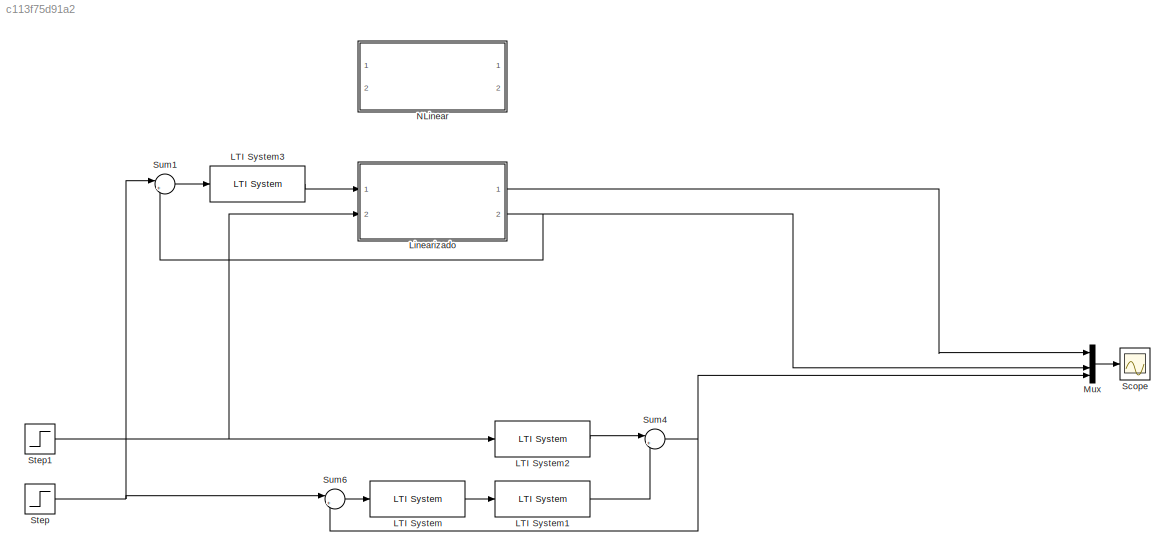
MODEL slx_c113f75d91a2
KIND model
CONFIG AbsTol = auto
CONFIG EnableMultiTasking = off
CONFIG FixedStep = auto
CONFIG MaxStep = auto
CONFIG MinStep = auto
CONFIG RelTol = 1e-3
CONFIG SampleTimeConstraint = Unconstrained
CONFIG Solver = VariableStepAuto
CONFIG SolverName = VariableStepAuto
CONFIG StartTime = 0.0
CONFIG StopTime = 500
BLOCK [Reference] LTI System  REF=cstblocks/LTI System
  Ports = [1, 1]
  SourceBlock = cstblocks/LTI System
  SourceProductBaseCode = CT
  SourceProductName = Control System Toolbox
  SourceType = LTI Block
BLOCK [Reference] LTI System1  REF=cstblocks/LTI System
  Ports = [1, 1]
  SourceBlock = cstblocks/LTI System
  SourceProductBaseCode = CT
  SourceProductName = Control System Toolbox
  SourceType = LTI Block
BLOCK [Reference] LTI System2  REF=cstblocks/LTI System
  Ports = [1, 1]
  SourceBlock = cstblocks/LTI System
  SourceProductBaseCode = CT
  SourceProductName = Control System Toolbox
  SourceType = LTI Block
BLOCK [Reference] LTI System3  REF=cstblocks/LTI System
  Ports = [1, 1]
  SourceBlock = cstblocks/LTI System
  SourceProductBaseCode = CT
  SourceProductName = Control System Toolbox
  SourceType = LTI Block
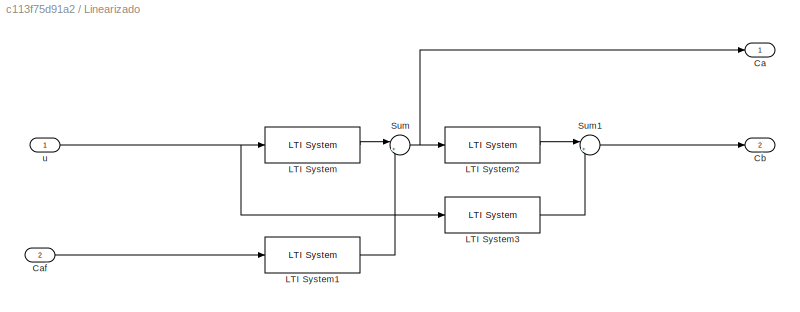
BLOCK [SubSystem] Linearizado
  Ports = [2, 2]
  RequestExecContextInheritance = off
  Variant = off
BLOCK [Outport] Linearizado/Ca
  IconDisplay = Port number
BLOCK [Inport] Linearizado/Caf
  IconDisplay = Port number
  Port = 2
BLOCK [Outport] Linearizado/Cb
  IconDisplay = Port number
  Port = 2
BLOCK [Reference] Linearizado/LTI System  REF=cstblocks/LTI System
  Ports = [1, 1]
  SourceBlock = cstblocks/LTI System
  SourceProductBaseCode = CT
  SourceProductName = Control System Toolbox
  SourceType = LTI Block
BLOCK [Reference] Linearizado/LTI System1  REF=cstblocks/LTI System
  Ports = [1, 1]
  SourceBlock = cstblocks/LTI System
  SourceProductBaseCode = CT
  SourceProductName = Control System Toolbox
  SourceType = LTI Block
BLOCK [Reference] Linearizado/LTI System2  REF=cstblocks/LTI System
  Ports = [1, 1]
  SourceBlock = cstblocks/LTI System
  SourceProductBaseCode = CT
  SourceProductName = Control System Toolbox
  SourceType = LTI Block
BLOCK [Reference] Linearizado/LTI System3  REF=cstblocks/LTI System
  Ports = [1, 1]
  SourceBlock = cstblocks/LTI System
  SourceProductBaseCode = CT
  SourceProductName = Control System Toolbox
  SourceType = LTI Block
BLOCK [Sum] Linearizado/Sum
  IconShape = round
  InputSameDT = off
  Inputs = |++
  OutDataTypeStr = Inherit: Inherit via internal rule
  Ports = [2, 1]
  SaturateOnIntegerOverflow = off
BLOCK [Sum] Linearizado/Sum1
  IconShape = round
  InputSameDT = off
  Inputs = |++
  OutDataTypeStr = Inherit: Inherit via internal rule
  Ports = [2, 1]
  SaturateOnIntegerOverflow = off
BLOCK [Inport] Linearizado/u
  IconDisplay = Port number
BLOCK [Mux] Mux
  DisplayOption = bar
  Ports = [4, 1]
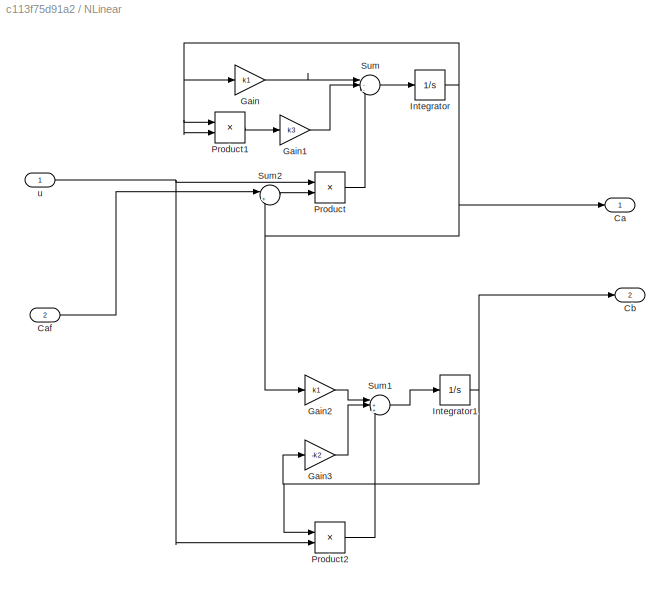
BLOCK [SubSystem] NLinear
  Ports = [2, 2]
  RequestExecContextInheritance = off
  Variant = off
BLOCK [Outport] NLinear/Ca
  IconDisplay = Port number
BLOCK [Inport] NLinear/Caf
  IconDisplay = Port number
  Port = 2
BLOCK [Outport] NLinear/Cb
  IconDisplay = Port number
  Port = 2
BLOCK [Gain] NLinear/Gain
  Gain = k1
  OutDataTypeStr = Inherit: Inherit via internal rule
  ParamDataTypeStr = Inherit: Inherit via internal rule
  SaturateOnIntegerOverflow = off
BLOCK [Gain] NLinear/Gain1
  Gain = k3
  OutDataTypeStr = Inherit: Inherit via internal rule
  ParamDataTypeStr = Inherit: Inherit via internal rule
  SaturateOnIntegerOverflow = off
BLOCK [Gain] NLinear/Gain2
  Gain = k1
  OutDataTypeStr = Inherit: Inherit via internal rule
  ParamDataTypeStr = Inherit: Inherit via internal rule
  SaturateOnIntegerOverflow = off
BLOCK [Gain] NLinear/Gain3
  Gain = -k2
  OutDataTypeStr = Inherit: Inherit via internal rule
  ParamDataTypeStr = Inherit: Inherit via internal rule
  SaturateOnIntegerOverflow = off
BLOCK [Integrator] NLinear/Integrator
  InitialCondition = Ca_0
  Ports = [1, 1]
BLOCK [Integrator] NLinear/Integrator1
  InitialCondition = Cb_0
  Ports = [1, 1]
BLOCK [Product] NLinear/Product
  InputSameDT = off
  OutDataTypeStr = Inherit: Inherit via internal rule
  Ports = [2, 1]
  RndMeth = Floor
  SaturateOnIntegerOverflow = off
BLOCK [Product] NLinear/Product1
  InputSameDT = off
  OutDataTypeStr = Inherit: Inherit via internal rule
  Ports = [2, 1]
  RndMeth = Floor
  SaturateOnIntegerOverflow = off
BLOCK [Product] NLinear/Product2
  InputSameDT = off
  OutDataTypeStr = Inherit: Inherit via internal rule
  Ports = [2, 1]
  RndMeth = Floor
  SaturateOnIntegerOverflow = off
BLOCK [Sum] NLinear/Sum
  IconShape = round
  InputSameDT = off
  Inputs = |--+
  OutDataTypeStr = Inherit: Inherit via internal rule
  Ports = [3, 1]
  SaturateOnIntegerOverflow = off
BLOCK [Sum] NLinear/Sum1
  IconShape = round
  InputSameDT = off
  Inputs = |++-
  OutDataTypeStr = Inherit: Inherit via internal rule
  Ports = [3, 1]
  SaturateOnIntegerOverflow = off
BLOCK [Sum] NLinear/Sum2
  IconShape = round
  InputSameDT = off
  Inputs = |+-
  OutDataTypeStr = Inherit: Inherit via internal rule
  Ports = [2, 1]
  SaturateOnIntegerOverflow = off
BLOCK [Inport] NLinear/u
  IconDisplay = Port number
BLOCK [Scope] Scope
  NumInputPorts = 1
  Ports = [1]
  ScopeSpecificationString = Simulink.scopes.TimeScopeBlockCfg('CurrentConfiguration', extmgr.ConfigurationSet(extmgr.Configuration('Core','General UI',true),extmgr.Configuration('Core','Source UI',true),extmgr.Configuration('Sources','WiredSimulink',true),extmgr.Configuration('Visuals','Time Domain',true,'SerializedDisplays',{struct('MinYLimReal','-0.31254','MaxYLimReal','2.81286','YLabelReal','','MinYLimMag','0.00000','MaxY...<+1441ch>
BLOCK [Step] Step
  SampleTime = 0
  Time = 100
BLOCK [Step] Step1
  SampleTime = 0
  Time = 250
BLOCK [Sum] Sum1
  IconShape = round
  InputSameDT = off
  Inputs = |+-
  OutDataTypeStr = Inherit: Inherit via internal rule
  Ports = [2, 1]
  SaturateOnIntegerOverflow = off
BLOCK [Sum] Sum4
  IconShape = round
  InputSameDT = off
  Inputs = |++
  OutDataTypeStr = Inherit: Inherit via internal rule
  Ports = [2, 1]
  SaturateOnIntegerOverflow = off
BLOCK [Sum] Sum6
  IconShape = round
  InputSameDT = off
  Inputs = |+-
  OutDataTypeStr = Inherit: Inherit via internal rule
  Ports = [2, 1]
  SaturateOnIntegerOverflow = off
LINE LTI System1:1 -> Sum4:2
LINE LTI System2:1 -> Sum4:1
LINE LTI System3:1 -> Linearizado:1
LINE LTI System:1 -> LTI System1:1
LINE Linearizado/Caf:1 -> Linearizado/LTI System1:1
LINE Linearizado/LTI System1:1 -> Linearizado/Sum:2
LINE Linearizado/LTI System2:1 -> Linearizado/Sum1:1
LINE Linearizado/LTI System3:1 -> Linearizado/Sum1:2
LINE Linearizado/LTI System:1 -> Linearizado/Sum:1
LINE Linearizado/Sum1:1 -> Linearizado/Cb:1
NET Linearizado/Sum:1 -> Linearizado/Ca:1, Linearizado/LTI System2:1
NET Linearizado/u:1 -> Linearizado/LTI System3:1, Linearizado/LTI System:1
LINE Linearizado:1 -> Mux:1
NET Linearizado:2 -> Mux:3, Sum1:2
LINE Mux:1 -> Scope:1
LINE NLinear/Caf:1 -> NLinear/Sum2:1
LINE NLinear/Gain1:1 -> NLinear/Sum:2
LINE NLinear/Gain2:1 -> NLinear/Sum1:1
LINE NLinear/Gain3:1 -> NLinear/Sum1:2
LINE NLinear/Gain:1 -> NLinear/Sum:1
NET NLinear/Integrator1:1 -> NLinear/Cb:1, NLinear/Gain3:1, NLinear/Product2:1
NET NLinear/Integrator:1 -> NLinear/Ca:1, NLinear/Gain2:1, NLinear/Gain:1, NLinear/Product1:1, NLinear/Product1:2, NLinear/Sum2:2
LINE NLinear/Product1:1 -> NLinear/Gain1:1
LINE NLinear/Product2:1 -> NLinear/Sum1:3
LINE NLinear/Product:1 -> NLinear/Sum:3
LINE NLinear/Sum1:1 -> NLinear/Integrator1:1
LINE NLinear/Sum2:1 -> NLinear/Product:2
LINE NLinear/Sum:1 -> NLinear/Integrator:1
NET NLinear/u:1 -> NLinear/Product2:2, NLinear/Product:1
NET Step1:1 -> LTI System2:1, Linearizado:2
NET Step:1 -> Sum1:1, Sum6:1
LINE Sum1:1 -> LTI System3:1
NET Sum4:1 -> Mux:4, Sum6:2
LINE Sum6:1 -> LTI System:1
note: NET lines group one-source signal fan-out (src -> all destinations, sorted); 1:1 wires keep LINE
